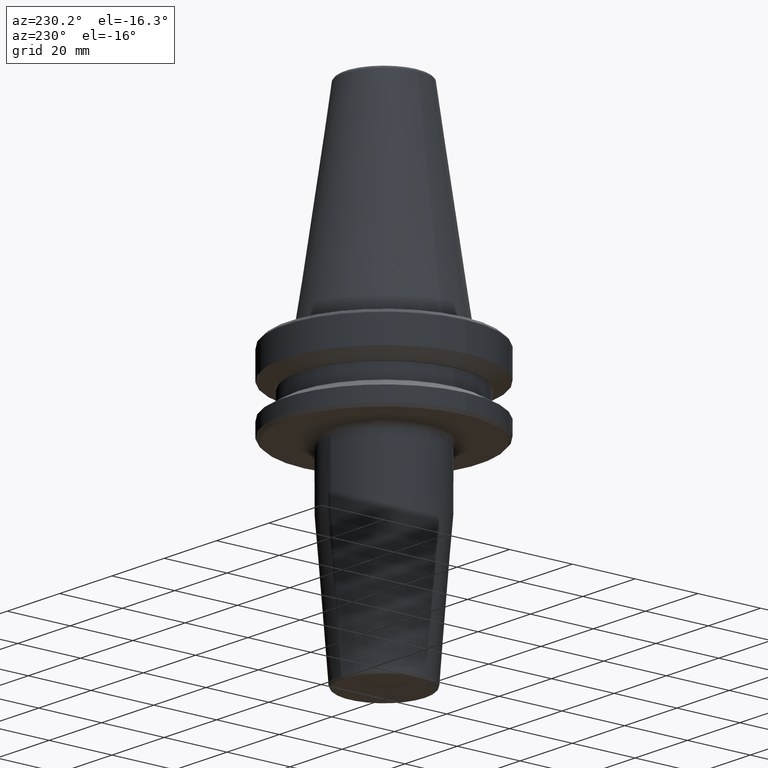
[diagram: clean part render]
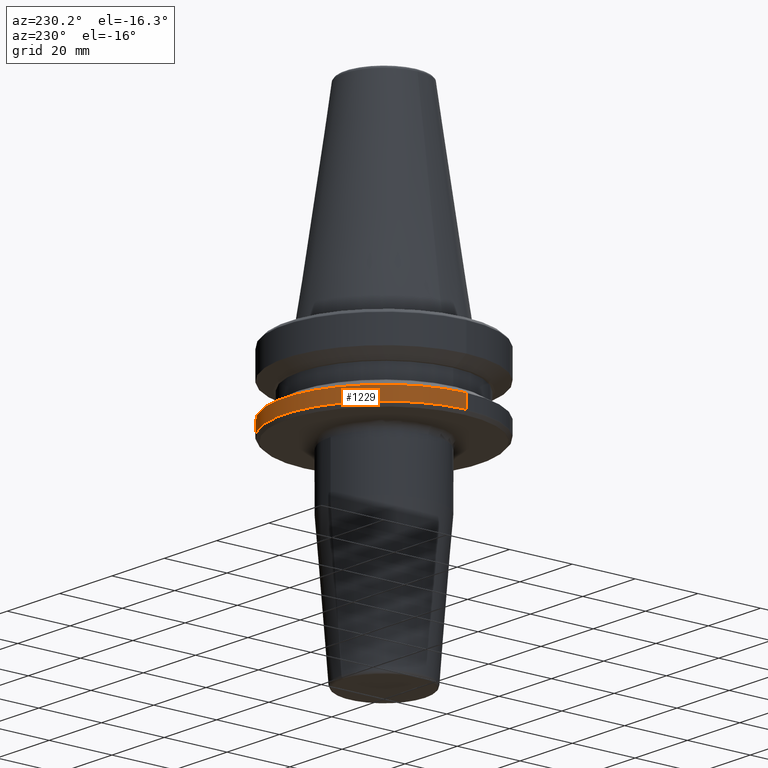
[diagram: same view with one face highlighted and labeled with its STEP entity id]
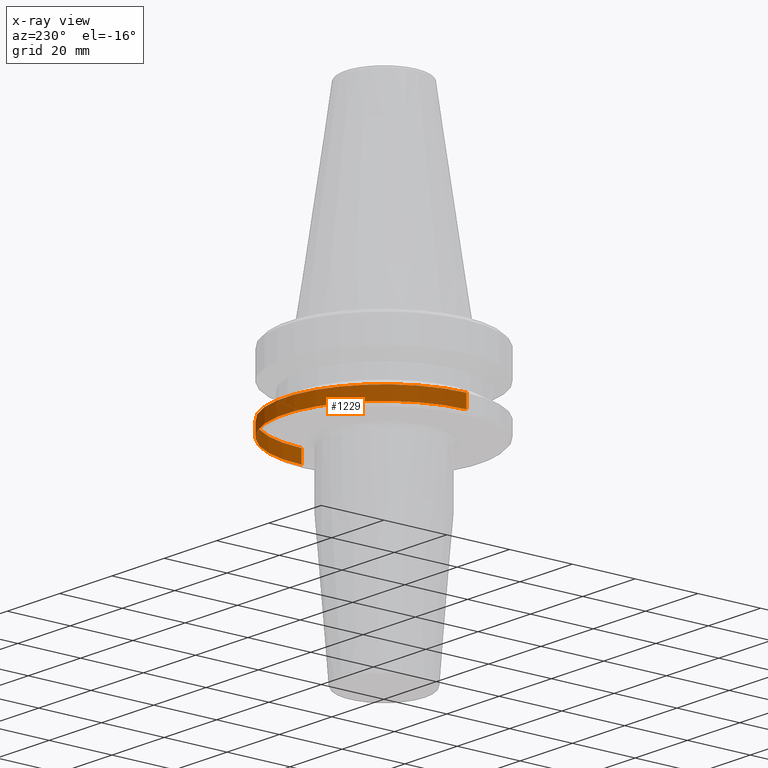
[diagram: x-ray of the same camera — body ghosted, the highlighted face saturated]
A machine part, auxiliary view. The second image highlights one B-rep face of the part: STEP entity #1229.
The next image is the same camera in x-ray: the body ghosted, the highlighted face saturated — about 1% of this face is hidden behind the body in this view.
In plain terms, the highlighted cylindrical surface (partial cylindrical patch) has radius 31.5 mm, axis along (-0, -0, 1).
Its self-contained STEP definition (entity closure, byte-faithful):
#3 = VERTEX_POINT ( 'NONE', #892 ) ;
#9 = DIRECTION ( 'NONE',  ( -0.0000000000000000000, -0.0000000000000000000, 1.000000000000000000 ) ) ;
#73 = CIRCLE ( 'NONE', #894, 31.50000000000000000 ) ;
#89 = CARTESIAN_POINT ( 'NONE',  ( 0.0000000000000000000, 0.0000000000000000000, -25.83431457505076900 ) ) ;
#117 = CARTESIAN_POINT ( 'NONE',  ( 0.0000000000000000000, 0.0000000000000000000, 69.75694866325665100 ) ) ;
#154 = ORIENTED_EDGE ( 'NONE', *, *, #495, .T. ) ;
#171 = VECTOR ( 'NONE', #735, 1000.000000000000000 ) ;
#204 = CARTESIAN_POINT ( 'NONE',  ( 0.0000000000000000000, 0.0000000000000000000, -21.60014200631675500 ) ) ;
#211 = AXIS2_PLACEMENT_3D ( 'NONE', #89, #681, #514 ) ;
#233 = CIRCLE ( 'NONE', #211, 31.50000000000000000 ) ;
#268 = ORIENTED_EDGE ( 'NONE', *, *, #456, .T. ) ;
#356 = DIRECTION ( 'NONE',  ( -0.0000000000000000000, -0.0000000000000000000, 1.000000000000000000 ) ) ;
#407 = VERTEX_POINT ( 'NONE', #501 ) ;
#456 = EDGE_CURVE ( 'NONE', #667, #1043, #233, .T. ) ;
#495 = EDGE_CURVE ( 'NONE', #1043, #3, #498, .T. ) ;
#498 = LINE ( 'NONE', #996, #689 ) ;
#501 = CARTESIAN_POINT ( 'NONE',  ( 31.50000000000000000, 0.0000000000000000000, -21.60014200631675500 ) ) ;
#514 = DIRECTION ( 'NONE',  ( 1.000000000000000000, 0.0000000000000000000, 0.0000000000000000000 ) ) ;
#550 = AXIS2_PLACEMENT_3D ( 'NONE', #117, #9, #605 ) ;
#597 = ORIENTED_EDGE ( 'NONE', *, *, #879, .F. ) ;
#605 = DIRECTION ( 'NONE',  ( 1.000000000000000000, 0.0000000000000000000, 0.0000000000000000000 ) ) ;
#652 = CARTESIAN_POINT ( 'NONE',  ( 31.50000000000000000, 0.0000000000000000000, -25.83431457505076900 ) ) ;
#667 = VERTEX_POINT ( 'NONE', #652 ) ;
#681 = DIRECTION ( 'NONE',  ( -0.0000000000000000000, -0.0000000000000000000, 1.000000000000000000 ) ) ;
#689 = VECTOR ( 'NONE', #356, 1000.000000000000000 ) ;
#729 = CARTESIAN_POINT ( 'NONE',  ( 31.50000000000000000, 0.0000000000000000000, 69.75694866325665100 ) ) ;
#735 = DIRECTION ( 'NONE',  ( -0.0000000000000000000, -0.0000000000000000000, 1.000000000000000000 ) ) ;
#879 = EDGE_CURVE ( 'NONE', #667, #407, #943, .T. ) ;
#881 = DIRECTION ( 'NONE',  ( 1.000000000000000000, 0.0000000000000000000, 0.0000000000000000000 ) ) ;
#892 = CARTESIAN_POINT ( 'NONE',  ( -31.50000000000000000, 3.857637417314162700E-015, -21.60014200631675500 ) ) ;
#894 = AXIS2_PLACEMENT_3D ( 'NONE', #204, #939, #881 ) ;
#939 = DIRECTION ( 'NONE',  ( -0.0000000000000000000, -0.0000000000000000000, 1.000000000000000000 ) ) ;
#943 = LINE ( 'NONE', #729, #171 ) ;
#994 = EDGE_LOOP ( 'NONE', ( #268, #154, #1087, #597 ) ) ;
#996 = CARTESIAN_POINT ( 'NONE',  ( -31.50000000000000000, 3.857637417314162700E-015, 69.75694866325665100 ) ) ;
#1002 = EDGE_CURVE ( 'NONE', #407, #3, #73, .T. ) ;
#1043 = VERTEX_POINT ( 'NONE', #1063 ) ;
#1063 = CARTESIAN_POINT ( 'NONE',  ( -31.50000000000000000, 3.857637417314162700E-015, -25.83431457505076900 ) ) ;
#1081 = CYLINDRICAL_SURFACE ( 'NONE', #550, 31.50000000000000000 ) ;
#1087 = ORIENTED_EDGE ( 'NONE', *, *, #1002, .F. ) ;
#1111 = FACE_OUTER_BOUND ( 'NONE', #994, .T. ) ;
#1229 = ADVANCED_FACE ( 'NONE', ( #1111 ), #1081, .T. ) ;